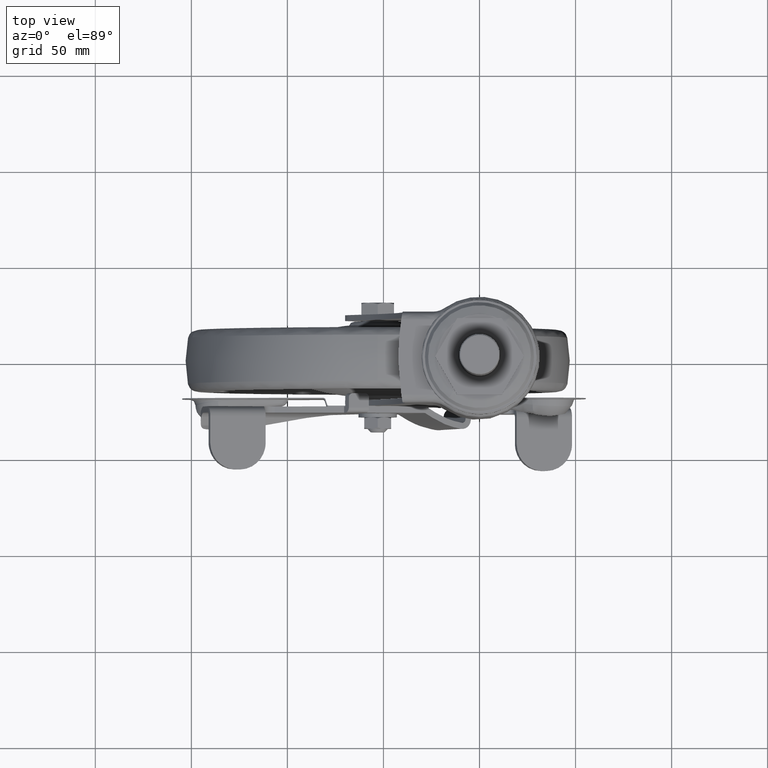
[diagram: clean part render]
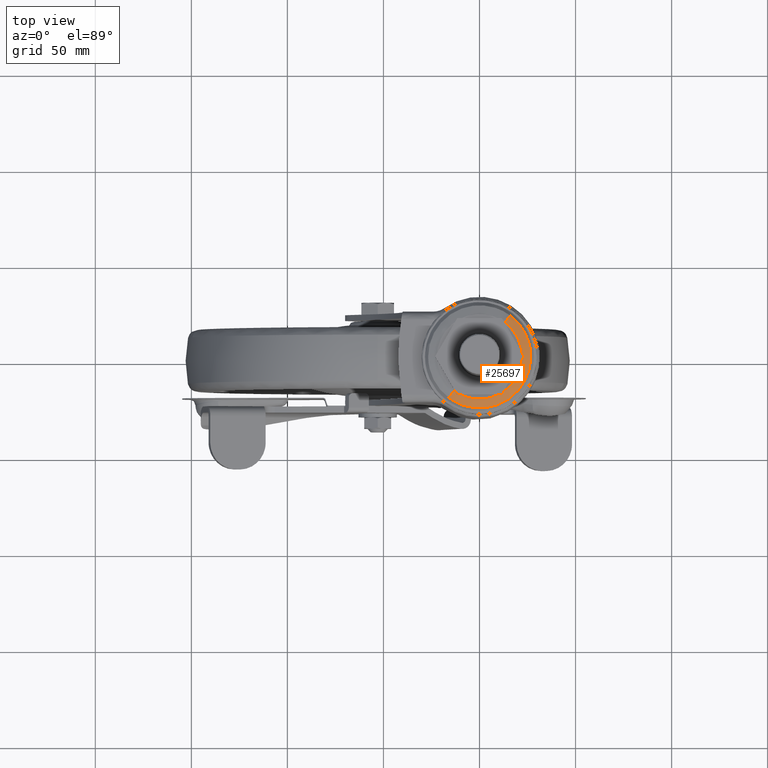
[diagram: same view with one face highlighted and labeled with its STEP entity id]
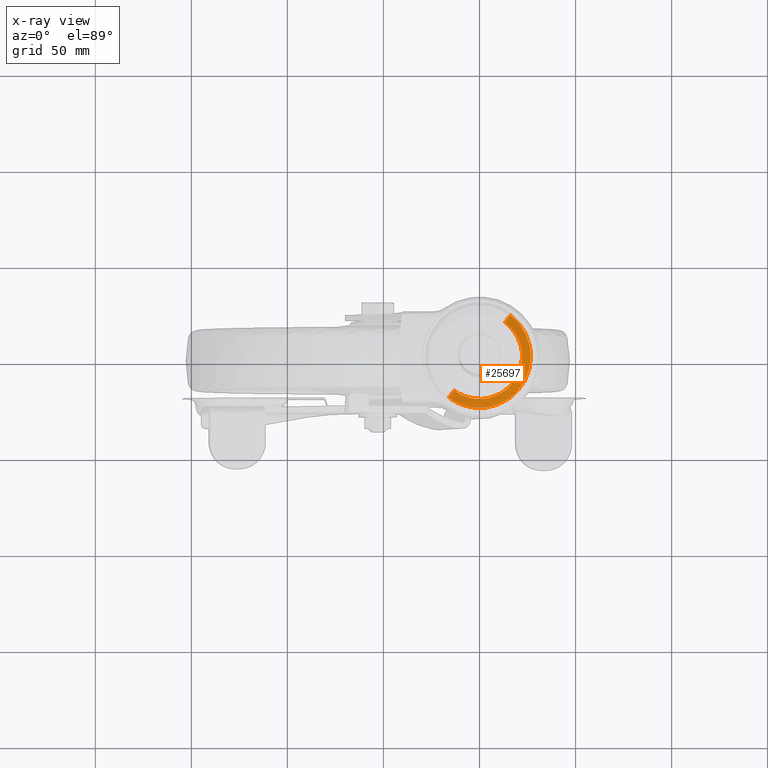
[diagram: x-ray of the same camera — body ghosted, the highlighted face saturated]
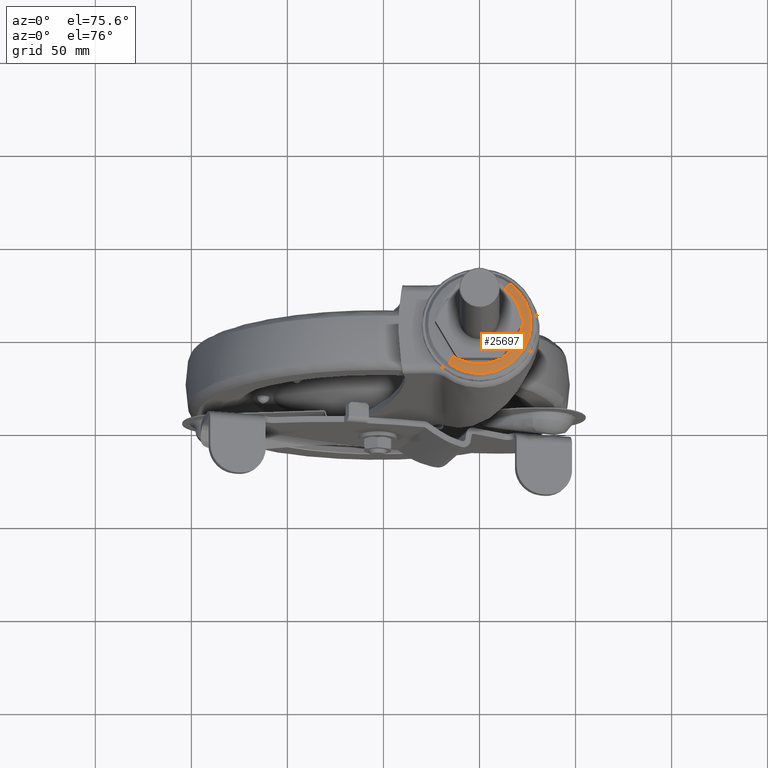
[diagram: same view with one face highlighted and labeled with its STEP entity id]
A machine part, top view. The second image highlights one B-rep face of the part: STEP entity #25697.
The next image is the same camera in x-ray: the body ghosted, the highlighted face saturated — about 0% of this face is hidden behind the body in this view.
A second angle (auxiliary view) of the same face is appended — the face is thin or edge-on in the first view.
In plain terms, the highlighted face is a freeform B-spline surface patch.
Its self-contained STEP definition (entity closure, byte-faithful):
#25389=CARTESIAN_POINT('',(15.975944705565780,21.417776546729119,-1.776431474379626));
#25390=VERTEX_POINT('',#25389);
#25406=CARTESIAN_POINT('',(26.719873605095650,-4.898443E-016,-1.776426950926222));
#25407=VERTEX_POINT('',#25406);
#25408=CARTESIAN_POINT('',(15.975944705565782,21.417776546729115,-1.776431474379626));
#25409=CARTESIAN_POINT('',(26.719875372685802,13.403661688608763,-1.776429212634344));
#25410=CARTESIAN_POINT('',(26.719873605095650,-4.898443E-016,-1.776426950926222));
#25418=(BOUNDED_CURVE()B_SPLINE_CURVE(2,(#25408,#25409,#25410),.UNSPECIFIED.,.F.,.U.)B_SPLINE_CURVE_WITH_KNOTS((3,3),(0.353156573301247,0.500000000000000),.UNSPECIFIED.)CURVE()GEOMETRIC_REPRESENTATION_ITEM()RATIONAL_B_SPLINE_CURVE((0.858025380701470,0.827962224370420,1.0))REPRESENTATION_ITEM(''));
#25419=EDGE_CURVE('',#25390,#25407,#25418,.T.);
#25421=CARTESIAN_POINT('',(25.961877094408390,-6.319223308355008,-1.776426951122887));
#25422=VERTEX_POINT('',#25421);
#25423=CARTESIAN_POINT('',(26.719873605095650,-4.898443E-016,-1.776426950926222));
#25424=CARTESIAN_POINT('',(26.719873605220531,-3.205072835288051,-1.776426951024555));
#25425=CARTESIAN_POINT('',(25.961877094408393,-6.319223308355008,-1.776426951122887));
#25433=(BOUNDED_CURVE()B_SPLINE_CURVE(2,(#25423,#25424,#25425),.UNSPECIFIED.,.F.,.U.)B_SPLINE_CURVE_WITH_KNOTS((3,3),(0.500000000000000,0.540401677693304),.UNSPECIFIED.)CURVE()GEOMETRIC_REPRESENTATION_ITEM()RATIONAL_B_SPLINE_CURVE((1.0,0.952666490299778,0.920631806223567))REPRESENTATION_ITEM(''));
#25434=EDGE_CURVE('',#25407,#25422,#25433,.T.);
#25487=CARTESIAN_POINT('',(-15.975944705565780,-21.417776546729119,-1.776431474379653));
#25488=VERTEX_POINT('',#25487);
#25489=CARTESIAN_POINT('',(25.961877094408393,-6.319223308355008,-1.776426951122887));
#25490=CARTESIAN_POINT('',(20.996277409830377,-26.719874836705579,-1.776428126544021));
#25491=CARTESIAN_POINT('',(-0.000002485319020,-26.719876937202020,-1.776430131266780));
#25492=CARTESIAN_POINT('',(-8.867805573650960,-26.719877824349123,-1.776430977963754));
#25493=CARTESIAN_POINT('',(-15.975944705565782,-21.417776546729115,-1.776431474379653));
#25501=(BOUNDED_CURVE()B_SPLINE_CURVE(2,(#25489,#25490,#25491,#25492,#25493),.UNSPECIFIED.,.F.,.U.)B_SPLINE_CURVE_WITH_KNOTS((3,2,3),(0.540401677693304,0.750000000000000,0.853156573301247),.UNSPECIFIED.)CURVE()GEOMETRIC_REPRESENTATION_ITEM()RATIONAL_B_SPLINE_CURVE((0.920631806223567,0.754440290886769,1.0,0.879144556816127,0.858025380701470))REPRESENTATION_ITEM(''));
#25502=EDGE_CURVE('',#25422,#25488,#25501,.T.);
#25566=CARTESIAN_POINT('',(-13.250223752611340,-17.763594890188219,-0.232583044952344));
#25567=VERTEX_POINT('',#25566);
#25568=CARTESIAN_POINT('',(-13.250223752611339,-17.763594890188219,-0.232583044952345));
#25569=CARTESIAN_POINT('',(-14.769385163855496,-19.800226820412622,-0.232583046627492));
#25570=CARTESIAN_POINT('',(-15.975944705565775,-21.417776546729119,-1.776431474379652));
#25578=(BOUNDED_CURVE()B_SPLINE_CURVE(2,(#25568,#25569,#25570),.UNSPECIFIED.,.F.,.U.)B_SPLINE_CURVE_WITH_KNOTS((3,3),(-1.520056356810690,-0.480576156082605),.UNSPECIFIED.)CURVE()GEOMETRIC_REPRESENTATION_ITEM()RATIONAL_B_SPLINE_CURVE((0.933402537438291,0.884053989359993,0.933342517802888))REPRESENTATION_ITEM(''));
#25579=EDGE_CURVE('',#25567,#25488,#25578,.T.);
#25596=CARTESIAN_POINT('',(13.250223752611340,17.763594890188219,-0.232583044952344));
#25597=VERTEX_POINT('',#25596);
#25613=CARTESIAN_POINT('',(13.250223752611339,17.763594890188219,-0.232583044952345));
#25614=CARTESIAN_POINT('',(14.769385163855492,19.800226820412615,-0.232583046627480));
#25615=CARTESIAN_POINT('',(15.975944705565784,21.417776546729115,-1.776431474379626));
#25623=(BOUNDED_CURVE()B_SPLINE_CURVE(2,(#25613,#25614,#25615),.UNSPECIFIED.,.F.,.U.)B_SPLINE_CURVE_WITH_KNOTS((3,3),(-1.520056356810691,-0.480576156082608),.UNSPECIFIED.)CURVE()GEOMETRIC_REPRESENTATION_ITEM()RATIONAL_B_SPLINE_CURVE((0.933402537438291,0.884053989359993,0.933342517802888))REPRESENTATION_ITEM(''));
#25624=EDGE_CURVE('',#25597,#25390,#25623,.T.);
#25631=CARTESIAN_POINT('',(12.615654229988177,17.937877676343561,-0.236413463439880));
#25632=CARTESIAN_POINT('',(12.859845755472080,17.755730291704495,-0.236413463439880));
#25633=CARTESIAN_POINT('',(30.678347085684461,4.464550718400072,-0.236413463439879));
#25634=CARTESIAN_POINT('',(17.571448902042274,-13.106898183642191,-0.236413463439880));
#25635=CARTESIAN_POINT('',(4.464550718400076,-30.678347085684461,-0.236413463439879));
#25636=CARTESIAN_POINT('',(-13.353948826080179,-17.387168844393660,-0.236413463439880));
#25637=CARTESIAN_POINT('',(-13.598138607070149,-17.205022761007815,-0.236413463439880));
#25638=CARTESIAN_POINT('',(14.232596650991479,20.236966952958525,-0.146598610351433));
#25639=CARTESIAN_POINT('',(14.508086088514370,20.031473824394617,-0.146598610351433));
#25640=CARTESIAN_POINT('',(34.610376285659839,5.036770067131274,-0.146598610351433));
#25641=CARTESIAN_POINT('',(19.823573176395549,-14.786803109264278,-0.146598610351433));
#25642=CARTESIAN_POINT('',(5.036770067131276,-34.610376285659839,-0.146598610351433));
#25643=CARTESIAN_POINT('',(-15.065518115405615,-19.615674031133654,-0.146598610351433));
#25644=CARTESIAN_POINT('',(-15.341005584843616,-19.410182370603980,-0.146598610351433));
#25645=CARTESIAN_POINT('',(15.485408119826301,22.018307695958608,-1.925138336735034));
#25646=CARTESIAN_POINT('',(15.785147266333080,21.794726220303549,-1.925138336735035));
#25647=CARTESIAN_POINT('',(37.656923406654975,5.480127204322850,-1.925138336735033));
#25648=CARTESIAN_POINT('',(21.568525305488919,-16.088398101166067,-1.925138336735035));
#25649=CARTESIAN_POINT('',(5.480127204322853,-37.656923406654975,-1.925138336735033));
#25650=CARTESIAN_POINT('',(-16.391646744056388,-21.342326025688536,-1.925138336735035));
#25651=CARTESIAN_POINT('',(-16.691383749239375,-21.118746147290100,-1.925138336735035));
#25659=(BOUNDED_SURFACE()B_SPLINE_SURFACE(2,2,((#25631,#25638,#25645),(#25632,#25639,#25646),(#25633,#25640,#25647),(#25634,#25641,#25648),(#25635,#25642,#25649),(#25636,#25643,#25650),(#25637,#25644,#25651)),.UNSPECIFIED.,.F.,.F.,.U.)B_SPLINE_SURFACE_WITH_KNOTS((3,1,2,1,3),(3,3),(0.0,0.891657613708131,45.474210890200553,90.056764166692957,90.948415297611518),(0.0,5.439509097496190),.UNSPECIFIED.)GEOMETRIC_REPRESENTATION_ITEM()RATIONAL_B_SPLINE_SURFACE(((0.949574770800160,0.889177773775406,0.949507980551548),(0.944076664522354,0.884029370458034,0.944010260994090),(0.663675263211013,0.621462691720954,0.663628582278462),(0.938578558244548,0.878880967140662,0.938512541436631),(0.663675263211013,0.621462691720954,0.663628582278462),(0.944076624548416,0.884029333026609,0.944010221022964),(0.949574690852284,0.889177698912556,0.949507900609296)))REPRESENTATION_ITEM('')SURFACE());
#25660=ORIENTED_EDGE('',*,*,#25502,.F.);
#25661=ORIENTED_EDGE('',*,*,#25434,.F.);
#25662=ORIENTED_EDGE('',*,*,#25419,.F.);
#25663=ORIENTED_EDGE('',*,*,#25624,.F.);
#25664=CARTESIAN_POINT('',(22.161085999999749,-4.898443E-016,-0.232583044952293));
#25665=VERTEX_POINT('',#25664);
#25666=CARTESIAN_POINT('',(13.250223752611335,17.763594890188227,-0.232583044952344));
#25667=CARTESIAN_POINT('',(22.161086001467478,11.116802987404032,-0.232583044952318));
#25668=CARTESIAN_POINT('',(22.161085999999749,-4.898443E-016,-0.232583044952293));
#25676=(BOUNDED_CURVE()B_SPLINE_CURVE(2,(#25666,#25667,#25668),.UNSPECIFIED.,.F.,.U.)B_SPLINE_CURVE_WITH_KNOTS((3,3),(0.353156604497766,0.500000000000000),.UNSPECIFIED.)CURVE()GEOMETRIC_REPRESENTATION_ITEM()RATIONAL_B_SPLINE_CURVE((0.858025367927794,0.827962260919415,1.0))REPRESENTATION_ITEM(''));
#25677=EDGE_CURVE('',#25597,#25665,#25676,.T.);
#25678=ORIENTED_EDGE('',*,*,#25677,.T.);
#25679=CARTESIAN_POINT('',(22.161085999999749,-4.898443E-016,-0.232583044952293));
#25680=CARTESIAN_POINT('',(22.161085999263491,-22.161086000986810,-0.232583044952306));
#25681=CARTESIAN_POINT('',(-2.203987E-009,-22.161086002954470,-0.232583044952333));
#25682=CARTESIAN_POINT('',(-7.354832690581561,-22.161086003607505,-0.232583044952341));
#25683=CARTESIAN_POINT('',(-13.250223752611335,-17.763594890188227,-0.232583044952344));
#25691=(BOUNDED_CURVE()B_SPLINE_CURVE(2,(#25679,#25680,#25681,#25682,#25683),.UNSPECIFIED.,.F.,.U.)B_SPLINE_CURVE_WITH_KNOTS((3,2,3),(0.500000000000000,0.750000000000000,0.853156604497766),.UNSPECIFIED.)CURVE()GEOMETRIC_REPRESENTATION_ITEM()RATIONAL_B_SPLINE_CURVE((1.0,0.707106781186547,1.0,0.879144520267132,0.858025367927794))REPRESENTATION_ITEM(''));
#25692=EDGE_CURVE('',#25665,#25567,#25691,.T.);
#25693=ORIENTED_EDGE('',*,*,#25692,.T.);
#25694=ORIENTED_EDGE('',*,*,#25579,.T.);
#25695=EDGE_LOOP('',(#25660,#25661,#25662,#25663,#25678,#25693,#25694));
#25696=FACE_OUTER_BOUND('',#25695,.T.);
#25697=ADVANCED_FACE('',(#25696),#25659,.T.);